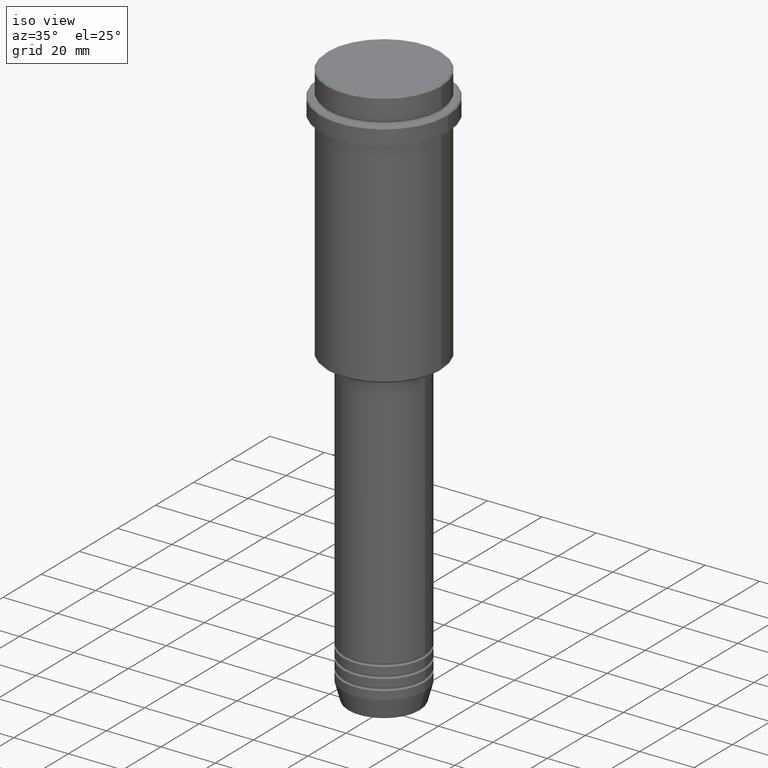
[diagram: clean part render]
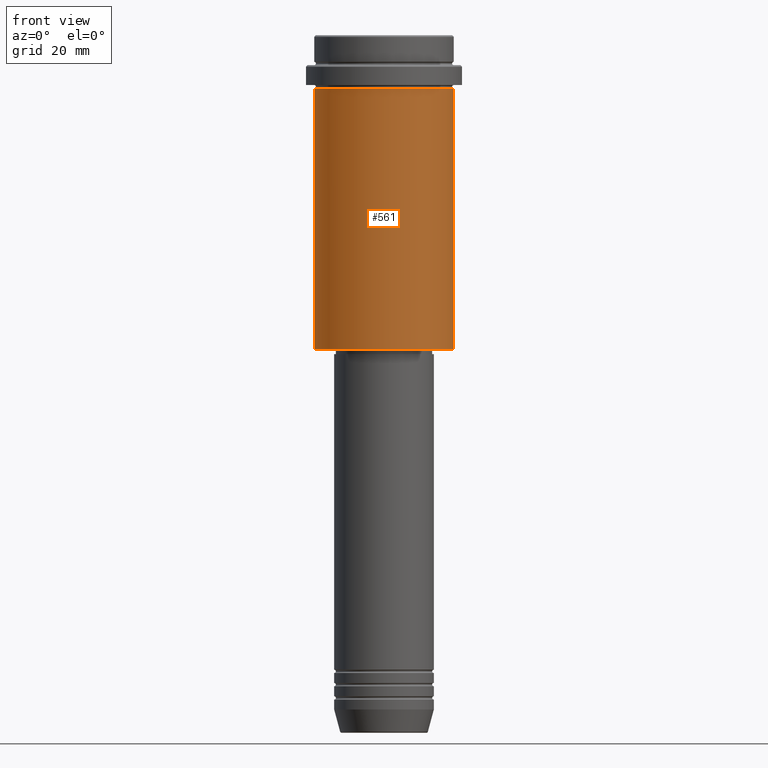
[diagram: tour spotlight — one face highlighted and labeled with its STEP entity id]
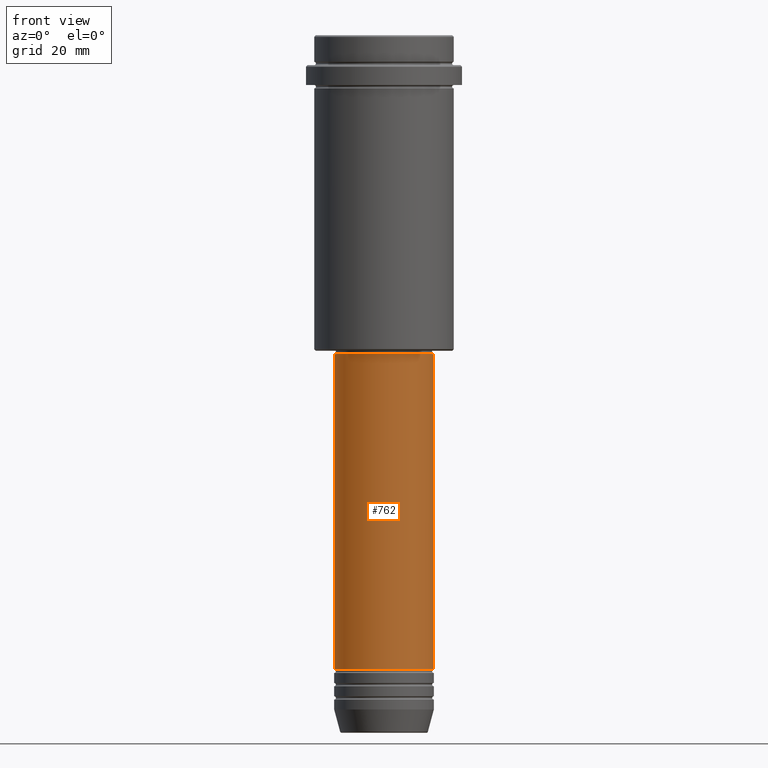
[diagram: tour spotlight — one face highlighted and labeled with its STEP entity id]
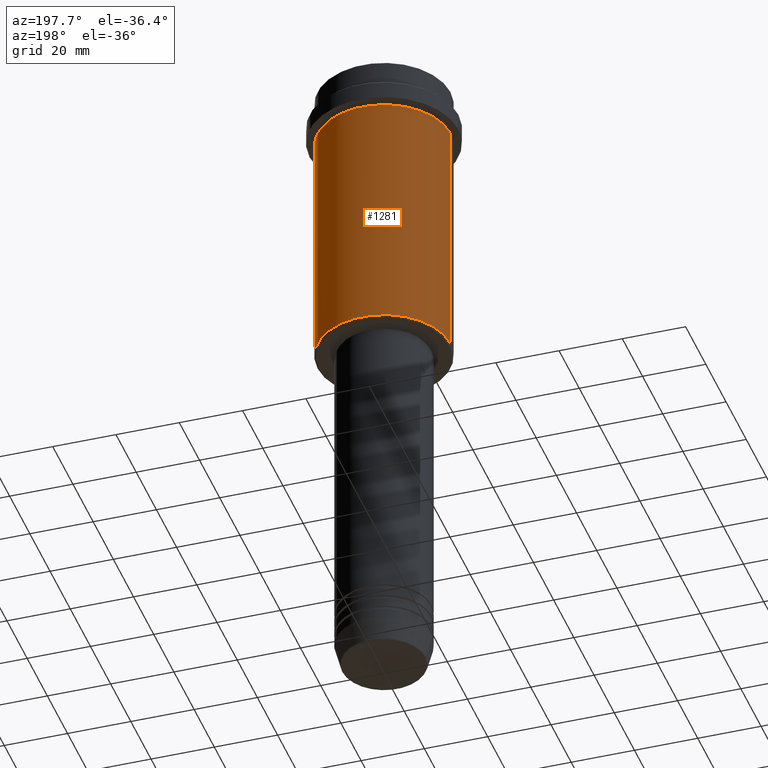
[diagram: tour spotlight — one face highlighted and labeled with its STEP entity id]
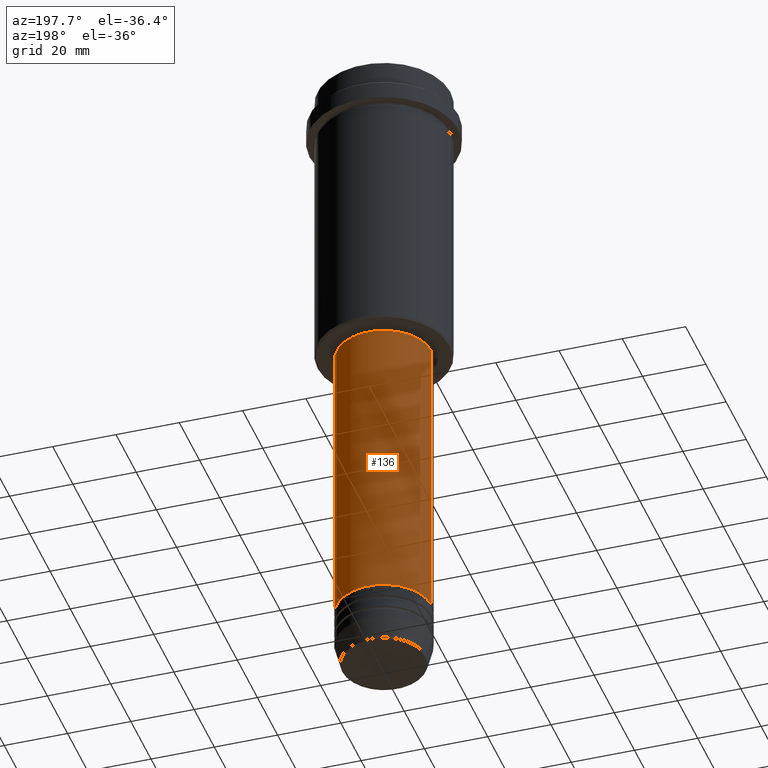
[diagram: tour spotlight — one face highlighted and labeled with its STEP entity id]
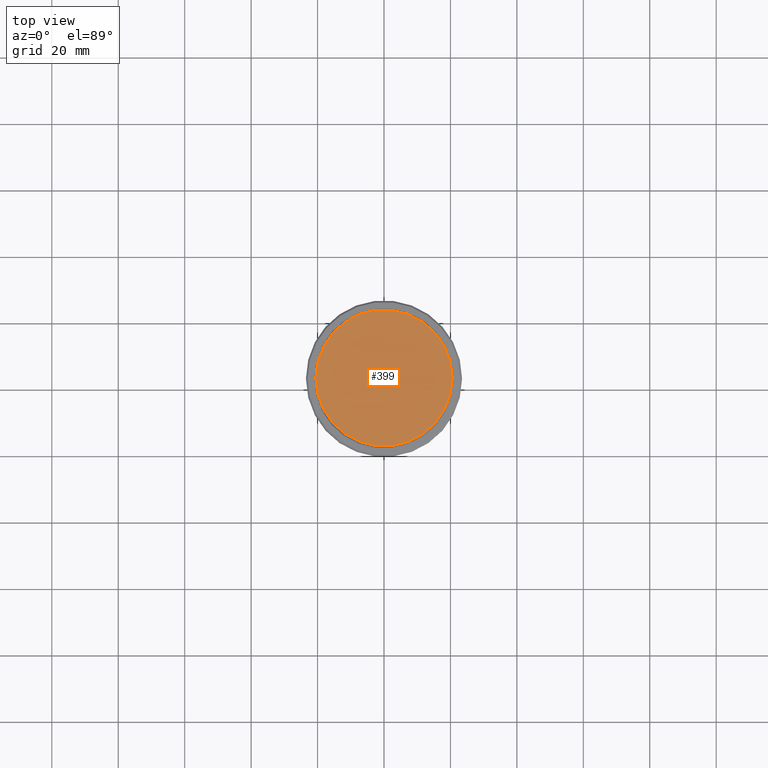
[diagram: tour spotlight — one face highlighted and labeled with its STEP entity id]
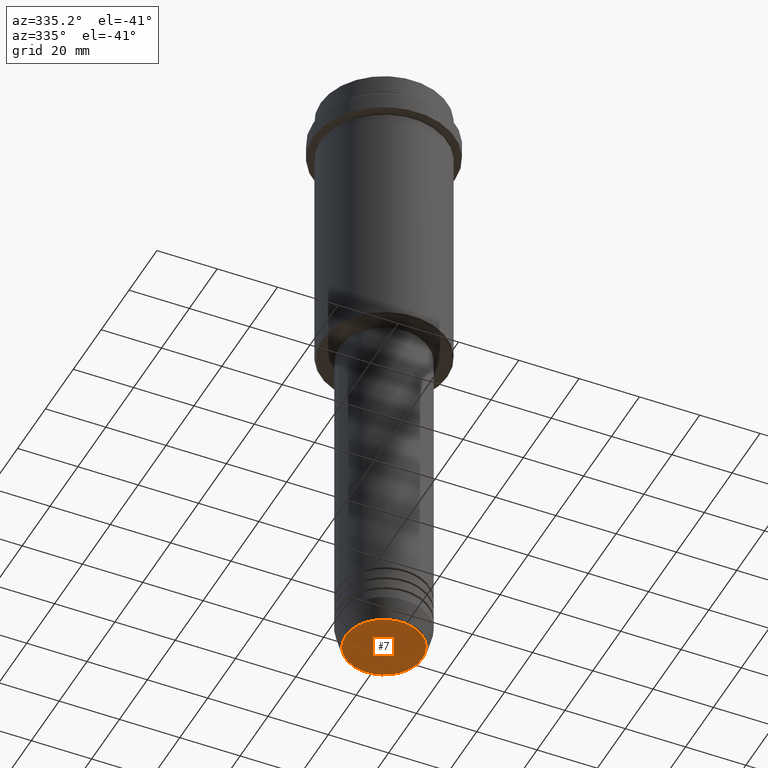
[diagram: tour spotlight — one face highlighted and labeled with its STEP entity id]
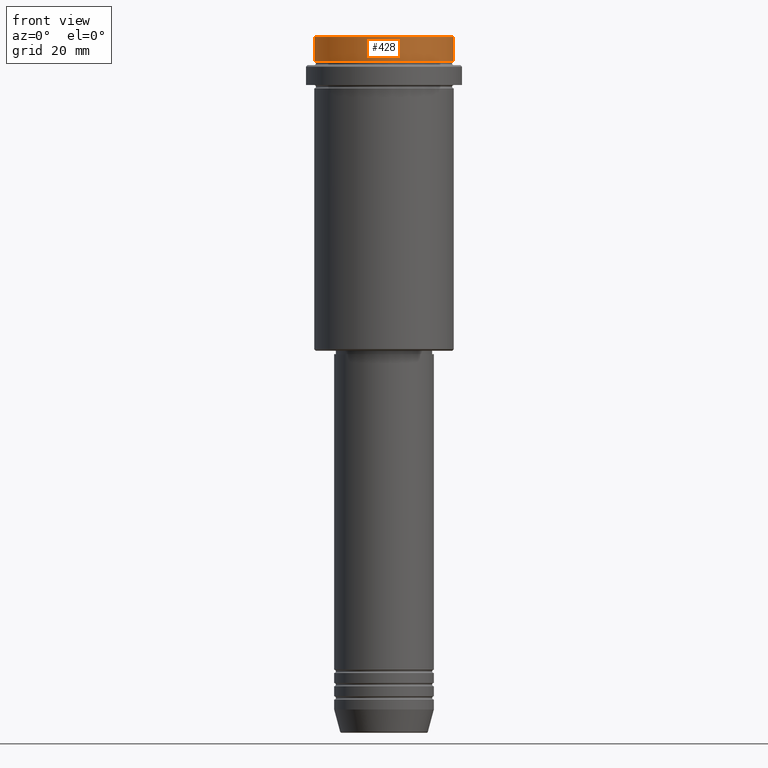
[diagram: tour spotlight — one face highlighted and labeled with its STEP entity id]
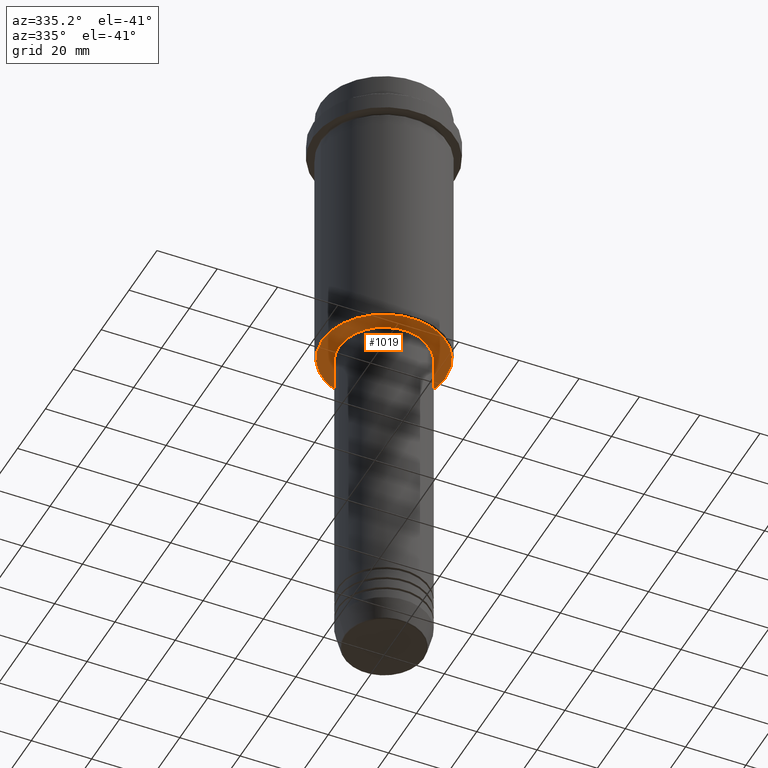
[diagram: tour spotlight — one face highlighted and labeled with its STEP entity id]
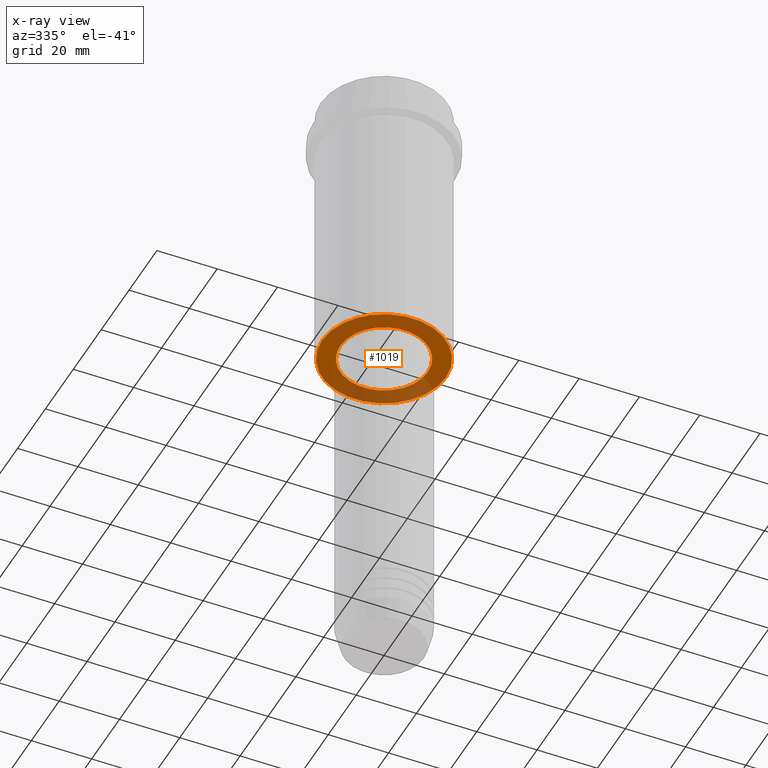
[diagram: x-ray of the same camera — body ghosted, this tour face saturated]
A machine part: a face-by-face anatomy tour. The part has 52 B-rep faces; the first image is the clean iso view, then the 8 largest visible faces are spotlighted one at a time (largest first), each with its STEP entity span.

Face 1 — front view, entity #561. In plain terms, the highlighted cylindrical surface (partial cylindrical patch) has radius 21 mm, axis along (-0, -0, 1).
Definition (entity closure, byte-faithful):
#54 = VERTEX_POINT ( 'NONE', #943 ) ;
#59 = LINE ( 'NONE', #1236, #369 ) ;
#89 = CIRCLE ( 'NONE', #573, 21.00000000000000000 ) ;
#193 = DIRECTION ( 'NONE',  ( -0.000000000000000000, -0.000000000000000000, 1.000000000000000000 ) ) ;
#202 = VERTEX_POINT ( 'NONE', #886 ) ;
#229 = VECTOR ( 'NONE', #193, 1000.000000000000000 ) ;
#268 = CARTESIAN_POINT ( 'NONE',  ( -21.00000000000000000, 2.571758278209441661E-15, -16.00000000000000355 ) ) ;
#269 = ORIENTED_EDGE ( 'NONE', *, *, #1320, .F. ) ;
#298 = EDGE_CURVE ( 'NONE', #54, #202, #59, .T. ) ;
#324 = VERTEX_POINT ( 'NONE', #268 ) ;
#369 = VECTOR ( 'NONE', #373, 1000.000000000000000 ) ;
#373 = DIRECTION ( 'NONE',  ( -0.000000000000000000, -0.000000000000000000, 1.000000000000000000 ) ) ;
#389 = CYLINDRICAL_SURFACE ( 'NONE', #620, 21.00000000000000000 ) ;
#422 = CARTESIAN_POINT ( 'NONE',  ( -21.00000000000000000, 2.571758278209441661E-15, 0.000000000000000000 ) ) ;
#561 = ADVANCED_FACE ( 'NONE', ( #1247 ), #389, .T. ) ;
#573 = AXIS2_PLACEMENT_3D ( 'NONE', #704, #805, #1354 ) ;
#620 = AXIS2_PLACEMENT_3D ( 'NONE', #701, #917, #896 ) ;
#646 = VERTEX_POINT ( 'NONE', #1350 ) ;
#701 = CARTESIAN_POINT ( 'NONE',  ( 0.000000000000000000, 0.000000000000000000, 0.000000000000000000 ) ) ;
#704 = CARTESIAN_POINT ( 'NONE',  ( 0.000000000000000000, 0.000000000000000000, -94.49999999999995737 ) ) ;
#805 = DIRECTION ( 'NONE',  ( -0.000000000000000000, -0.000000000000000000, 1.000000000000000000 ) ) ;
#810 = DIRECTION ( 'NONE',  ( 1.000000000000000000, 0.000000000000000000, 0.000000000000000000 ) ) ;
#886 = CARTESIAN_POINT ( 'NONE',  ( 21.00000000000000000, 0.000000000000000000, -16.00000000000000355 ) ) ;
#896 = DIRECTION ( 'NONE',  ( 1.000000000000000000, 0.000000000000000000, 0.000000000000000000 ) ) ;
#917 = DIRECTION ( 'NONE',  ( -0.000000000000000000, -0.000000000000000000, 1.000000000000000000 ) ) ;
#923 = EDGE_LOOP ( 'NONE', ( #269, #991, #1041, #1077 ) ) ;
#943 = CARTESIAN_POINT ( 'NONE',  ( 21.00000000000000000, 0.000000000000000000, -94.49999999999995737 ) ) ;
#966 = EDGE_CURVE ( 'NONE', #646, #54, #89, .T. ) ;
#991 = ORIENTED_EDGE ( 'NONE', *, *, #966, .T. ) ;
#1002 = CARTESIAN_POINT ( 'NONE',  ( 0.000000000000000000, 0.000000000000000000, -16.00000000000000355 ) ) ;
#1009 = EDGE_CURVE ( 'NONE', #324, #202, #1111, .T. ) ;
#1041 = ORIENTED_EDGE ( 'NONE', *, *, #298, .T. ) ;
#1077 = ORIENTED_EDGE ( 'NONE', *, *, #1009, .F. ) ;
#1111 = CIRCLE ( 'NONE', #1299, 21.00000000000000000 ) ;
#1236 = CARTESIAN_POINT ( 'NONE',  ( 21.00000000000000000, 0.000000000000000000, 0.000000000000000000 ) ) ;
#1247 = FACE_OUTER_BOUND ( 'NONE', #923, .T. ) ;
#1299 = AXIS2_PLACEMENT_3D ( 'NONE', #1002, #1349, #810 ) ;
#1320 = EDGE_CURVE ( 'NONE', #646, #324, #1398, .T. ) ;
#1349 = DIRECTION ( 'NONE',  ( -0.000000000000000000, -0.000000000000000000, 1.000000000000000000 ) ) ;
#1350 = CARTESIAN_POINT ( 'NONE',  ( -21.00000000000000000, 2.571758278209441661E-15, -94.49999999999995737 ) ) ;
#1354 = DIRECTION ( 'NONE',  ( -1.000000000000000000, 0.000000000000000000, 0.000000000000000000 ) ) ;
#1398 = LINE ( 'NONE', #422, #229 ) ;

Face 2 — front view, entity #762. In plain terms, the highlighted cylindrical surface (partial cylindrical patch) has radius 15 mm, axis along (-0, -0, 1).
Definition (entity closure, byte-faithful):
#58 = CYLINDRICAL_SURFACE ( 'NONE', #508, 15.00000000000000000 ) ;
#155 = VERTEX_POINT ( 'NONE', #1089 ) ;
#166 = VERTEX_POINT ( 'NONE', #1208 ) ;
#169 = DIRECTION ( 'NONE',  ( -0.000000000000000000, -0.000000000000000000, 1.000000000000000000 ) ) ;
#203 = VECTOR ( 'NONE', #938, 1000.000000000000000 ) ;
#215 = EDGE_LOOP ( 'NONE', ( #1270, #490, #1377, #854 ) ) ;
#230 = CARTESIAN_POINT ( 'NONE',  ( 0.000000000000000000, 0.000000000000000000, -190.9999999999998863 ) ) ;
#283 = VERTEX_POINT ( 'NONE', #496 ) ;
#289 = LINE ( 'NONE', #535, #1025 ) ;
#296 = DIRECTION ( 'NONE',  ( 1.000000000000000000, 0.000000000000000000, 0.000000000000000000 ) ) ;
#326 = CIRCLE ( 'NONE', #824, 15.00000000000000000 ) ;
#444 = EDGE_CURVE ( 'NONE', #283, #1029, #326, .T. ) ;
#490 = ORIENTED_EDGE ( 'NONE', *, *, #444, .T. ) ;
#496 = CARTESIAN_POINT ( 'NONE',  ( -15.00000000000000000, 1.836970198721029589E-15, -190.9999999999998863 ) ) ;
#500 = CARTESIAN_POINT ( 'NONE',  ( 0.000000000000000000, 0.000000000000000000, 0.000000000000000000 ) ) ;
#508 = AXIS2_PLACEMENT_3D ( 'NONE', #500, #931, #296 ) ;
#522 = DIRECTION ( 'NONE',  ( 1.000000000000000000, 0.000000000000000000, 0.000000000000000000 ) ) ;
#535 = CARTESIAN_POINT ( 'NONE',  ( -15.00000000000000000, 1.836970198721029589E-15, 0.000000000000000000 ) ) ;
#541 = DIRECTION ( 'NONE',  ( -0.000000000000000000, -0.000000000000000000, 1.000000000000000000 ) ) ;
#676 = EDGE_CURVE ( 'NONE', #283, #166, #289, .T. ) ;
#680 = DIRECTION ( 'NONE',  ( 1.000000000000000000, 0.000000000000000000, 0.000000000000000000 ) ) ;
#762 = ADVANCED_FACE ( 'NONE', ( #1278 ), #58, .T. ) ;
#824 = AXIS2_PLACEMENT_3D ( 'NONE', #230, #541, #680 ) ;
#854 = ORIENTED_EDGE ( 'NONE', *, *, #1220, .F. ) ;
#908 = CARTESIAN_POINT ( 'NONE',  ( 15.00000000000000000, 0.000000000000000000, -190.9999999999998863 ) ) ;
#931 = DIRECTION ( 'NONE',  ( -0.000000000000000000, -0.000000000000000000, 1.000000000000000000 ) ) ;
#938 = DIRECTION ( 'NONE',  ( -0.000000000000000000, -0.000000000000000000, 1.000000000000000000 ) ) ;
#944 = CARTESIAN_POINT ( 'NONE',  ( 0.000000000000000000, 0.000000000000000000, -96.00000000000001421 ) ) ;
#1025 = VECTOR ( 'NONE', #169, 1000.000000000000000 ) ;
#1029 = VERTEX_POINT ( 'NONE', #908 ) ;
#1065 = CIRCLE ( 'NONE', #1181, 15.00000000000000000 ) ;
#1084 = EDGE_CURVE ( 'NONE', #1029, #155, #1233, .T. ) ;
#1089 = CARTESIAN_POINT ( 'NONE',  ( 15.00000000000000000, 0.000000000000000000, -96.00000000000001421 ) ) ;
#1181 = AXIS2_PLACEMENT_3D ( 'NONE', #944, #1383, #522 ) ;
#1208 = CARTESIAN_POINT ( 'NONE',  ( -15.00000000000000000, 1.836970198721029589E-15, -96.00000000000001421 ) ) ;
#1218 = CARTESIAN_POINT ( 'NONE',  ( 15.00000000000000000, 0.000000000000000000, 0.000000000000000000 ) ) ;
#1220 = EDGE_CURVE ( 'NONE', #166, #155, #1065, .T. ) ;
#1233 = LINE ( 'NONE', #1218, #203 ) ;
#1270 = ORIENTED_EDGE ( 'NONE', *, *, #676, .F. ) ;
#1278 = FACE_OUTER_BOUND ( 'NONE', #215, .T. ) ;
#1377 = ORIENTED_EDGE ( 'NONE', *, *, #1084, .T. ) ;
#1383 = DIRECTION ( 'NONE',  ( -0.000000000000000000, -0.000000000000000000, 1.000000000000000000 ) ) ;

Face 3 — auxiliary view, entity #1281. In plain terms, the highlighted cylindrical surface (partial cylindrical patch) has radius 21 mm, axis along (-0, -0, 1).
Definition (entity closure, byte-faithful):
#49 = ORIENTED_EDGE ( 'NONE', *, *, #1266, .F. ) ;
#54 = VERTEX_POINT ( 'NONE', #943 ) ;
#59 = LINE ( 'NONE', #1236, #369 ) ;
#70 = DIRECTION ( 'NONE',  ( 1.000000000000000000, 0.000000000000000000, 0.000000000000000000 ) ) ;
#78 = CARTESIAN_POINT ( 'NONE',  ( 0.000000000000000000, 0.000000000000000000, -94.49999999999995737 ) ) ;
#193 = DIRECTION ( 'NONE',  ( -0.000000000000000000, -0.000000000000000000, 1.000000000000000000 ) ) ;
#202 = VERTEX_POINT ( 'NONE', #886 ) ;
#210 = DIRECTION ( 'NONE',  ( -0.000000000000000000, -0.000000000000000000, 1.000000000000000000 ) ) ;
#229 = VECTOR ( 'NONE', #193, 1000.000000000000000 ) ;
#242 = ORIENTED_EDGE ( 'NONE', *, *, #1320, .T. ) ;
#268 = CARTESIAN_POINT ( 'NONE',  ( -21.00000000000000000, 2.571758278209441661E-15, -16.00000000000000355 ) ) ;
#274 = CIRCLE ( 'NONE', #641, 21.00000000000000000 ) ;
#298 = EDGE_CURVE ( 'NONE', #54, #202, #59, .T. ) ;
#304 = EDGE_LOOP ( 'NONE', ( #543, #242, #49, #1097 ) ) ;
#324 = VERTEX_POINT ( 'NONE', #268 ) ;
#369 = VECTOR ( 'NONE', #373, 1000.000000000000000 ) ;
#373 = DIRECTION ( 'NONE',  ( -0.000000000000000000, -0.000000000000000000, 1.000000000000000000 ) ) ;
#413 = AXIS2_PLACEMENT_3D ( 'NONE', #78, #1390, #1039 ) ;
#422 = CARTESIAN_POINT ( 'NONE',  ( -21.00000000000000000, 2.571758278209441661E-15, 0.000000000000000000 ) ) ;
#430 = CYLINDRICAL_SURFACE ( 'NONE', #1364, 21.00000000000000000 ) ;
#514 = DIRECTION ( 'NONE',  ( -0.000000000000000000, -0.000000000000000000, 1.000000000000000000 ) ) ;
#543 = ORIENTED_EDGE ( 'NONE', *, *, #1125, .T. ) ;
#641 = AXIS2_PLACEMENT_3D ( 'NONE', #1292, #514, #70 ) ;
#646 = VERTEX_POINT ( 'NONE', #1350 ) ;
#830 = FACE_OUTER_BOUND ( 'NONE', #304, .T. ) ;
#853 = CARTESIAN_POINT ( 'NONE',  ( 0.000000000000000000, 0.000000000000000000, 0.000000000000000000 ) ) ;
#886 = CARTESIAN_POINT ( 'NONE',  ( 21.00000000000000000, 0.000000000000000000, -16.00000000000000355 ) ) ;
#887 = CIRCLE ( 'NONE', #413, 21.00000000000000000 ) ;
#942 = DIRECTION ( 'NONE',  ( 1.000000000000000000, 0.000000000000000000, 0.000000000000000000 ) ) ;
#943 = CARTESIAN_POINT ( 'NONE',  ( 21.00000000000000000, 0.000000000000000000, -94.49999999999995737 ) ) ;
#1039 = DIRECTION ( 'NONE',  ( -1.000000000000000000, 0.000000000000000000, 0.000000000000000000 ) ) ;
#1097 = ORIENTED_EDGE ( 'NONE', *, *, #298, .F. ) ;
#1125 = EDGE_CURVE ( 'NONE', #54, #646, #887, .T. ) ;
#1236 = CARTESIAN_POINT ( 'NONE',  ( 21.00000000000000000, 0.000000000000000000, 0.000000000000000000 ) ) ;
#1266 = EDGE_CURVE ( 'NONE', #202, #324, #274, .T. ) ;
#1281 = ADVANCED_FACE ( 'NONE', ( #830 ), #430, .T. ) ;
#1292 = CARTESIAN_POINT ( 'NONE',  ( 0.000000000000000000, 0.000000000000000000, -16.00000000000000355 ) ) ;
#1320 = EDGE_CURVE ( 'NONE', #646, #324, #1398, .T. ) ;
#1350 = CARTESIAN_POINT ( 'NONE',  ( -21.00000000000000000, 2.571758278209441661E-15, -94.49999999999995737 ) ) ;
#1364 = AXIS2_PLACEMENT_3D ( 'NONE', #853, #210, #942 ) ;
#1390 = DIRECTION ( 'NONE',  ( -0.000000000000000000, -0.000000000000000000, 1.000000000000000000 ) ) ;
#1398 = LINE ( 'NONE', #422, #229 ) ;

Face 4 — auxiliary view, entity #136. In plain terms, the highlighted cylindrical surface (partial cylindrical patch) has radius 15 mm, axis along (-0, -0, 1).
Definition (entity closure, byte-faithful):
#15 = DIRECTION ( 'NONE',  ( -0.000000000000000000, -0.000000000000000000, 1.000000000000000000 ) ) ;
#17 = AXIS2_PLACEMENT_3D ( 'NONE', #745, #1152, #526 ) ;
#102 = CYLINDRICAL_SURFACE ( 'NONE', #390, 15.00000000000000000 ) ;
#123 = DIRECTION ( 'NONE',  ( 1.000000000000000000, 0.000000000000000000, 0.000000000000000000 ) ) ;
#136 = ADVANCED_FACE ( 'NONE', ( #985 ), #102, .T. ) ;
#155 = VERTEX_POINT ( 'NONE', #1089 ) ;
#166 = VERTEX_POINT ( 'NONE', #1208 ) ;
#169 = DIRECTION ( 'NONE',  ( -0.000000000000000000, -0.000000000000000000, 1.000000000000000000 ) ) ;
#203 = VECTOR ( 'NONE', #938, 1000.000000000000000 ) ;
#216 = DIRECTION ( 'NONE',  ( 1.000000000000000000, 0.000000000000000000, 0.000000000000000000 ) ) ;
#222 = CARTESIAN_POINT ( 'NONE',  ( 0.000000000000000000, 0.000000000000000000, 0.000000000000000000 ) ) ;
#233 = AXIS2_PLACEMENT_3D ( 'NONE', #1093, #15, #216 ) ;
#283 = VERTEX_POINT ( 'NONE', #496 ) ;
#289 = LINE ( 'NONE', #535, #1025 ) ;
#293 = ORIENTED_EDGE ( 'NONE', *, *, #1362, .F. ) ;
#325 = CIRCLE ( 'NONE', #17, 15.00000000000000000 ) ;
#390 = AXIS2_PLACEMENT_3D ( 'NONE', #222, #1221, #123 ) ;
#407 = ORIENTED_EDGE ( 'NONE', *, *, #1084, .F. ) ;
#496 = CARTESIAN_POINT ( 'NONE',  ( -15.00000000000000000, 1.836970198721029589E-15, -190.9999999999998863 ) ) ;
#526 = DIRECTION ( 'NONE',  ( 1.000000000000000000, 0.000000000000000000, 0.000000000000000000 ) ) ;
#535 = CARTESIAN_POINT ( 'NONE',  ( -15.00000000000000000, 1.836970198721029589E-15, 0.000000000000000000 ) ) ;
#676 = EDGE_CURVE ( 'NONE', #283, #166, #289, .T. ) ;
#745 = CARTESIAN_POINT ( 'NONE',  ( 0.000000000000000000, 0.000000000000000000, -96.00000000000001421 ) ) ;
#832 = EDGE_LOOP ( 'NONE', ( #905, #1391, #293, #407 ) ) ;
#883 = EDGE_CURVE ( 'NONE', #1029, #283, #1017, .T. ) ;
#905 = ORIENTED_EDGE ( 'NONE', *, *, #883, .T. ) ;
#908 = CARTESIAN_POINT ( 'NONE',  ( 15.00000000000000000, 0.000000000000000000, -190.9999999999998863 ) ) ;
#938 = DIRECTION ( 'NONE',  ( -0.000000000000000000, -0.000000000000000000, 1.000000000000000000 ) ) ;
#985 = FACE_OUTER_BOUND ( 'NONE', #832, .T. ) ;
#1017 = CIRCLE ( 'NONE', #233, 15.00000000000000000 ) ;
#1025 = VECTOR ( 'NONE', #169, 1000.000000000000000 ) ;
#1029 = VERTEX_POINT ( 'NONE', #908 ) ;
#1084 = EDGE_CURVE ( 'NONE', #1029, #155, #1233, .T. ) ;
#1089 = CARTESIAN_POINT ( 'NONE',  ( 15.00000000000000000, 0.000000000000000000, -96.00000000000001421 ) ) ;
#1093 = CARTESIAN_POINT ( 'NONE',  ( 0.000000000000000000, 0.000000000000000000, -190.9999999999998863 ) ) ;
#1152 = DIRECTION ( 'NONE',  ( -0.000000000000000000, -0.000000000000000000, 1.000000000000000000 ) ) ;
#1208 = CARTESIAN_POINT ( 'NONE',  ( -15.00000000000000000, 1.836970198721029589E-15, -96.00000000000001421 ) ) ;
#1218 = CARTESIAN_POINT ( 'NONE',  ( 15.00000000000000000, 0.000000000000000000, 0.000000000000000000 ) ) ;
#1221 = DIRECTION ( 'NONE',  ( -0.000000000000000000, -0.000000000000000000, 1.000000000000000000 ) ) ;
#1233 = LINE ( 'NONE', #1218, #203 ) ;
#1362 = EDGE_CURVE ( 'NONE', #155, #166, #325, .T. ) ;
#1391 = ORIENTED_EDGE ( 'NONE', *, *, #676, .T. ) ;

Face 5 — top view, entity #399. In plain terms, the highlighted planar face has unit normal (0, -0, 1).
Definition (entity closure, byte-faithful):
#44 = DIRECTION ( 'NONE',  ( 1.000000000000000000, 0.000000000000000000, 0.000000000000000000 ) ) ;
#179 = ORIENTED_EDGE ( 'NONE', *, *, #1374, .T. ) ;
#187 = DIRECTION ( 'NONE',  ( 1.000000000000000000, 0.000000000000000000, 0.000000000000000000 ) ) ;
#220 = CARTESIAN_POINT ( 'NONE',  ( -20.49999999999998934, 0.000000000000000000, 0.000000000000000000 ) ) ;
#347 = CARTESIAN_POINT ( 'NONE',  ( 0.000000000000000000, 0.000000000000000000, 0.000000000000000000 ) ) ;
#348 = AXIS2_PLACEMENT_3D ( 'NONE', #347, #546, #667 ) ;
#367 = CARTESIAN_POINT ( 'NONE',  ( 0.000000000000000000, 0.000000000000000000, 0.000000000000000000 ) ) ;
#395 = EDGE_LOOP ( 'NONE', ( #663, #179 ) ) ;
#399 = ADVANCED_FACE ( 'NONE', ( #1313 ), #1331, .T. ) ;
#439 = AXIS2_PLACEMENT_3D ( 'NONE', #1272, #1295, #187 ) ;
#492 = VERTEX_POINT ( 'NONE', #655 ) ;
#546 = DIRECTION ( 'NONE',  ( 0.000000000000000000, -0.000000000000000000, 1.000000000000000000 ) ) ;
#578 = DIRECTION ( 'NONE',  ( -0.000000000000000000, -0.000000000000000000, 1.000000000000000000 ) ) ;
#612 = EDGE_CURVE ( 'NONE', #951, #492, #1088, .T. ) ;
#655 = CARTESIAN_POINT ( 'NONE',  ( 20.49999999999998934, 2.541142108230757480E-15, 0.000000000000000000 ) ) ;
#663 = ORIENTED_EDGE ( 'NONE', *, *, #612, .T. ) ;
#667 = DIRECTION ( 'NONE',  ( 1.000000000000000000, 0.000000000000000000, 0.000000000000000000 ) ) ;
#951 = VERTEX_POINT ( 'NONE', #220 ) ;
#1088 = CIRCLE ( 'NONE', #1116, 20.49999999999998934 ) ;
#1116 = AXIS2_PLACEMENT_3D ( 'NONE', #367, #578, #44 ) ;
#1272 = CARTESIAN_POINT ( 'NONE',  ( 0.000000000000000000, 0.000000000000000000, 0.000000000000000000 ) ) ;
#1295 = DIRECTION ( 'NONE',  ( -0.000000000000000000, -0.000000000000000000, 1.000000000000000000 ) ) ;
#1313 = FACE_OUTER_BOUND ( 'NONE', #395, .T. ) ;
#1322 = CIRCLE ( 'NONE', #439, 20.49999999999998934 ) ;
#1331 = PLANE ( 'NONE',  #348 ) ;
#1374 = EDGE_CURVE ( 'NONE', #492, #951, #1322, .T. ) ;

Face 6 — auxiliary view, entity #7. In plain terms, the highlighted planar face has unit normal (0, -0, 1).
Definition (entity closure, byte-faithful):
#7 = ADVANCED_FACE ( 'NONE', ( #308 ), #734, .F. ) ;
#103 = VERTEX_POINT ( 'NONE', #773 ) ;
#140 = DIRECTION ( 'NONE',  ( 1.000000000000000000, 0.000000000000000000, 0.000000000000000000 ) ) ;
#225 = DIRECTION ( 'NONE',  ( 0.000000000000000000, 0.000000000000000000, -1.000000000000000000 ) ) ;
#228 = AXIS2_PLACEMENT_3D ( 'NONE', #802, #1132, #140 ) ;
#308 = FACE_OUTER_BOUND ( 'NONE', #397, .T. ) ;
#313 = EDGE_CURVE ( 'NONE', #763, #103, #1158, .T. ) ;
#314 = DIRECTION ( 'NONE',  ( 1.000000000000000000, 0.000000000000000000, 0.000000000000000000 ) ) ;
#321 = CARTESIAN_POINT ( 'NONE',  ( 0.000000000000000000, 0.000000000000000000, -210.0000000000000284 ) ) ;
#397 = EDGE_LOOP ( 'NONE', ( #1410, #1052 ) ) ;
#615 = CARTESIAN_POINT ( 'NONE',  ( 12.74069215899265828, 0.000000000000000000, -210.0000000000000284 ) ) ;
#644 = DIRECTION ( 'NONE',  ( 0.000000000000000000, -0.000000000000000000, 1.000000000000000000 ) ) ;
#666 = AXIS2_PLACEMENT_3D ( 'NONE', #1189, #225, #672 ) ;
#672 = DIRECTION ( 'NONE',  ( 1.000000000000000000, 0.000000000000000000, 0.000000000000000000 ) ) ;
#734 = PLANE ( 'NONE',  #750 ) ;
#750 = AXIS2_PLACEMENT_3D ( 'NONE', #321, #644, #314 ) ;
#763 = VERTEX_POINT ( 'NONE', #615 ) ;
#773 = CARTESIAN_POINT ( 'NONE',  ( -12.74069215899265828, 1.589857736427681035E-15, -210.0000000000000284 ) ) ;
#801 = CIRCLE ( 'NONE', #666, 12.74069215899265828 ) ;
#802 = CARTESIAN_POINT ( 'NONE',  ( 0.000000000000000000, 0.000000000000000000, -210.0000000000000284 ) ) ;
#859 = EDGE_CURVE ( 'NONE', #103, #763, #801, .T. ) ;
#1052 = ORIENTED_EDGE ( 'NONE', *, *, #859, .T. ) ;
#1132 = DIRECTION ( 'NONE',  ( 0.000000000000000000, 0.000000000000000000, -1.000000000000000000 ) ) ;
#1158 = CIRCLE ( 'NONE', #228, 12.74069215899265828 ) ;
#1189 = CARTESIAN_POINT ( 'NONE',  ( 0.000000000000000000, 0.000000000000000000, -210.0000000000000284 ) ) ;
#1410 = ORIENTED_EDGE ( 'NONE', *, *, #313, .T. ) ;

Face 7 — front view, entity #428. In plain terms, the highlighted cylindrical surface (partial cylindrical patch) has radius 21 mm, axis along (-0, -0, 1).
Definition (entity closure, byte-faithful):
#39 = CIRCLE ( 'NONE', #504, 21.00000000000000000 ) ;
#47 = VERTEX_POINT ( 'NONE', #1305 ) ;
#87 = CARTESIAN_POINT ( 'NONE',  ( 0.000000000000000000, 0.000000000000000000, -0.5000000000000108802 ) ) ;
#88 = AXIS2_PLACEMENT_3D ( 'NONE', #95, #244, #453 ) ;
#95 = CARTESIAN_POINT ( 'NONE',  ( 0.000000000000000000, 0.000000000000000000, 0.000000000000000000 ) ) ;
#107 = CARTESIAN_POINT ( 'NONE',  ( -21.00000000000000000, 2.571758278209441661E-15, -7.999999999999998224 ) ) ;
#110 = CARTESIAN_POINT ( 'NONE',  ( -21.00000000000000000, 2.571758278209441661E-15, 0.000000000000000000 ) ) ;
#116 = EDGE_CURVE ( 'NONE', #494, #872, #39, .T. ) ;
#157 = EDGE_CURVE ( 'NONE', #494, #625, #559, .T. ) ;
#192 = DIRECTION ( 'NONE',  ( 0.000000000000000000, 0.000000000000000000, -1.000000000000000000 ) ) ;
#244 = DIRECTION ( 'NONE',  ( -0.000000000000000000, -0.000000000000000000, 1.000000000000000000 ) ) ;
#328 = VECTOR ( 'NONE', #1151, 1000.000000000000000 ) ;
#394 = AXIS2_PLACEMENT_3D ( 'NONE', #87, #192, #744 ) ;
#428 = ADVANCED_FACE ( 'NONE', ( #787 ), #1219, .T. ) ;
#453 = DIRECTION ( 'NONE',  ( 1.000000000000000000, 0.000000000000000000, 0.000000000000000000 ) ) ;
#494 = VERTEX_POINT ( 'NONE', #107 ) ;
#504 = AXIS2_PLACEMENT_3D ( 'NONE', #1310, #1333, #1101 ) ;
#554 = DIRECTION ( 'NONE',  ( -0.000000000000000000, -0.000000000000000000, 1.000000000000000000 ) ) ;
#559 = LINE ( 'NONE', #110, #844 ) ;
#576 = ORIENTED_EDGE ( 'NONE', *, *, #717, .T. ) ;
#604 = ORIENTED_EDGE ( 'NONE', *, *, #157, .F. ) ;
#625 = VERTEX_POINT ( 'NONE', #1356 ) ;
#631 = ORIENTED_EDGE ( 'NONE', *, *, #116, .T. ) ;
#670 = EDGE_CURVE ( 'NONE', #47, #625, #1162, .T. ) ;
#717 = EDGE_CURVE ( 'NONE', #872, #47, #1045, .T. ) ;
#744 = DIRECTION ( 'NONE',  ( 1.000000000000000000, 0.000000000000000000, 0.000000000000000000 ) ) ;
#787 = FACE_OUTER_BOUND ( 'NONE', #1170, .T. ) ;
#835 = CARTESIAN_POINT ( 'NONE',  ( 21.00000000000000000, 0.000000000000000000, 0.000000000000000000 ) ) ;
#844 = VECTOR ( 'NONE', #554, 1000.000000000000000 ) ;
#872 = VERTEX_POINT ( 'NONE', #1307 ) ;
#1045 = LINE ( 'NONE', #835, #328 ) ;
#1101 = DIRECTION ( 'NONE',  ( 1.000000000000000000, 0.000000000000000000, 0.000000000000000000 ) ) ;
#1107 = ORIENTED_EDGE ( 'NONE', *, *, #670, .T. ) ;
#1151 = DIRECTION ( 'NONE',  ( -0.000000000000000000, -0.000000000000000000, 1.000000000000000000 ) ) ;
#1162 = CIRCLE ( 'NONE', #394, 21.00000000000000000 ) ;
#1170 = EDGE_LOOP ( 'NONE', ( #604, #631, #576, #1107 ) ) ;
#1219 = CYLINDRICAL_SURFACE ( 'NONE', #88, 21.00000000000000000 ) ;
#1305 = CARTESIAN_POINT ( 'NONE',  ( 21.00000000000000000, 0.000000000000000000, -0.5000000000000108802 ) ) ;
#1307 = CARTESIAN_POINT ( 'NONE',  ( 21.00000000000000000, 0.000000000000000000, -7.999999999999998224 ) ) ;
#1310 = CARTESIAN_POINT ( 'NONE',  ( 0.000000000000000000, 0.000000000000000000, -7.999999999999998224 ) ) ;
#1333 = DIRECTION ( 'NONE',  ( -0.000000000000000000, -0.000000000000000000, 1.000000000000000000 ) ) ;
#1356 = CARTESIAN_POINT ( 'NONE',  ( -21.00000000000000000, 2.571758278209441661E-15, -0.5000000000000108802 ) ) ;

Face 8 — auxiliary view, entity #1019. An x-ray twin of the same camera follows (body ghosted, this face saturated) — the face is partly hidden behind the body. In plain terms, the highlighted planar face has unit normal (0, 0, -1).
Definition (entity closure, byte-faithful):
#26 = DIRECTION ( 'NONE',  ( 0.000000000000000000, 0.000000000000000000, -1.000000000000000000 ) ) ;
#27 = DIRECTION ( 'NONE',  ( 0.000000000000000000, 0.000000000000000000, -1.000000000000000000 ) ) ;
#40 = VERTEX_POINT ( 'NONE', #1164 ) ;
#119 = DIRECTION ( 'NONE',  ( 1.000000000000000000, 0.000000000000000000, 0.000000000000000000 ) ) ;
#159 = DIRECTION ( 'NONE',  ( -1.000000000000000000, 0.000000000000000000, -0.000000000000000000 ) ) ;
#248 = CARTESIAN_POINT ( 'NONE',  ( 14.49999999999999467, 0.000000000000000000, -95.00000000000001421 ) ) ;
#259 = DIRECTION ( 'NONE',  ( -1.000000000000000000, 0.000000000000000000, 0.000000000000000000 ) ) ;
#270 = CARTESIAN_POINT ( 'NONE',  ( 0.000000000000000000, 21.00000000000000000, -95.00000000000001421 ) ) ;
#337 = DIRECTION ( 'NONE',  ( 1.000000000000000000, 0.000000000000000000, 0.000000000000000000 ) ) ;
#360 = FACE_OUTER_BOUND ( 'NONE', #703, .T. ) ;
#366 = ORIENTED_EDGE ( 'NONE', *, *, #634, .T. ) ;
#412 = CIRCLE ( 'NONE', #1203, 14.49999999999999467 ) ;
#438 = ORIENTED_EDGE ( 'NONE', *, *, #941, .T. ) ;
#440 = AXIS2_PLACEMENT_3D ( 'NONE', #1024, #487, #495 ) ;
#452 = DIRECTION ( 'NONE',  ( -0.000000000000000000, -0.000000000000000000, 1.000000000000000000 ) ) ;
#485 = CARTESIAN_POINT ( 'NONE',  ( 20.49999999999996447, 0.000000000000000000, -95.00000000000001421 ) ) ;
#487 = DIRECTION ( 'NONE',  ( 0.000000000000000000, 0.000000000000000000, -1.000000000000000000 ) ) ;
#495 = DIRECTION ( 'NONE',  ( -1.000000000000000000, 0.000000000000000000, 0.000000000000000000 ) ) ;
#545 = EDGE_CURVE ( 'NONE', #1013, #981, #664, .T. ) ;
#586 = ORIENTED_EDGE ( 'NONE', *, *, #847, .T. ) ;
#602 = CARTESIAN_POINT ( 'NONE',  ( 0.000000000000000000, 0.000000000000000000, -95.00000000000001421 ) ) ;
#634 = EDGE_CURVE ( 'NONE', #981, #1013, #978, .T. ) ;
#664 = CIRCLE ( 'NONE', #440, 20.49999999999996447 ) ;
#689 = AXIS2_PLACEMENT_3D ( 'NONE', #1180, #873, #119 ) ;
#703 = EDGE_LOOP ( 'NONE', ( #366, #861 ) ) ;
#796 = AXIS2_PLACEMENT_3D ( 'NONE', #270, #26, #159 ) ;
#826 = EDGE_LOOP ( 'NONE', ( #586, #438 ) ) ;
#847 = EDGE_CURVE ( 'NONE', #1060, #40, #1209, .T. ) ;
#861 = ORIENTED_EDGE ( 'NONE', *, *, #545, .T. ) ;
#873 = DIRECTION ( 'NONE',  ( -0.000000000000000000, -0.000000000000000000, 1.000000000000000000 ) ) ;
#941 = EDGE_CURVE ( 'NONE', #40, #1060, #412, .T. ) ;
#978 = CIRCLE ( 'NONE', #1346, 20.49999999999996447 ) ;
#981 = VERTEX_POINT ( 'NONE', #485 ) ;
#1008 = FACE_BOUND ( 'NONE', #826, .T. ) ;
#1013 = VERTEX_POINT ( 'NONE', #1030 ) ;
#1019 = ADVANCED_FACE ( 'NONE', ( #360, #1008 ), #1136, .T. ) ;
#1024 = CARTESIAN_POINT ( 'NONE',  ( 0.000000000000000000, 0.000000000000000000, -95.00000000000001421 ) ) ;
#1030 = CARTESIAN_POINT ( 'NONE',  ( -20.49999999999996447, 2.541142108230755902E-15, -95.00000000000001421 ) ) ;
#1060 = VERTEX_POINT ( 'NONE', #248 ) ;
#1136 = PLANE ( 'NONE',  #796 ) ;
#1164 = CARTESIAN_POINT ( 'NONE',  ( -14.49999999999999467, 1.775737858763661620E-15, -95.00000000000001421 ) ) ;
#1180 = CARTESIAN_POINT ( 'NONE',  ( 0.000000000000000000, 0.000000000000000000, -95.00000000000001421 ) ) ;
#1203 = AXIS2_PLACEMENT_3D ( 'NONE', #1211, #452, #337 ) ;
#1209 = CIRCLE ( 'NONE', #689, 14.49999999999999467 ) ;
#1211 = CARTESIAN_POINT ( 'NONE',  ( 0.000000000000000000, 0.000000000000000000, -95.00000000000001421 ) ) ;
#1346 = AXIS2_PLACEMENT_3D ( 'NONE', #602, #27, #259 ) ;